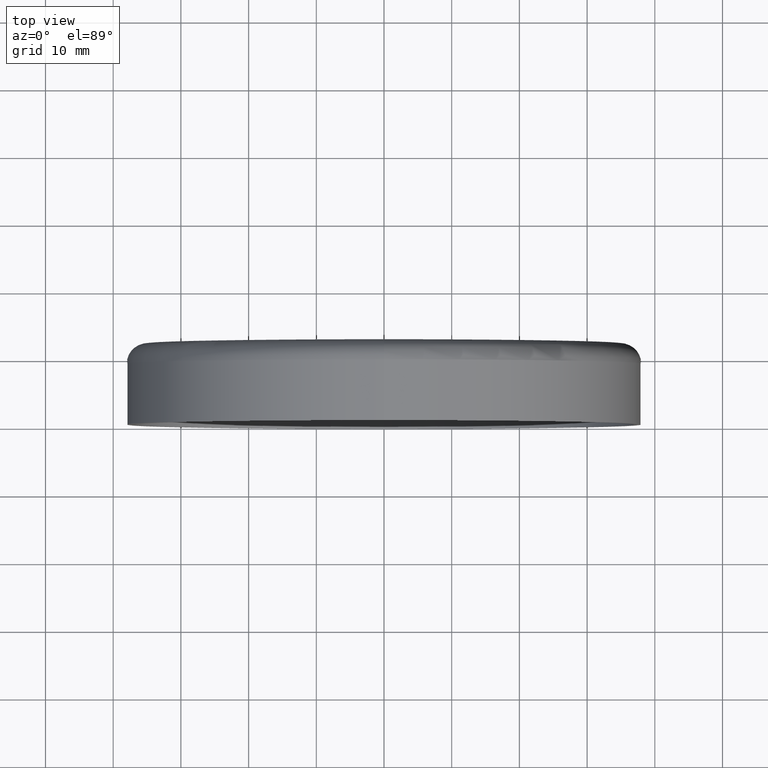
[diagram: clean part render]
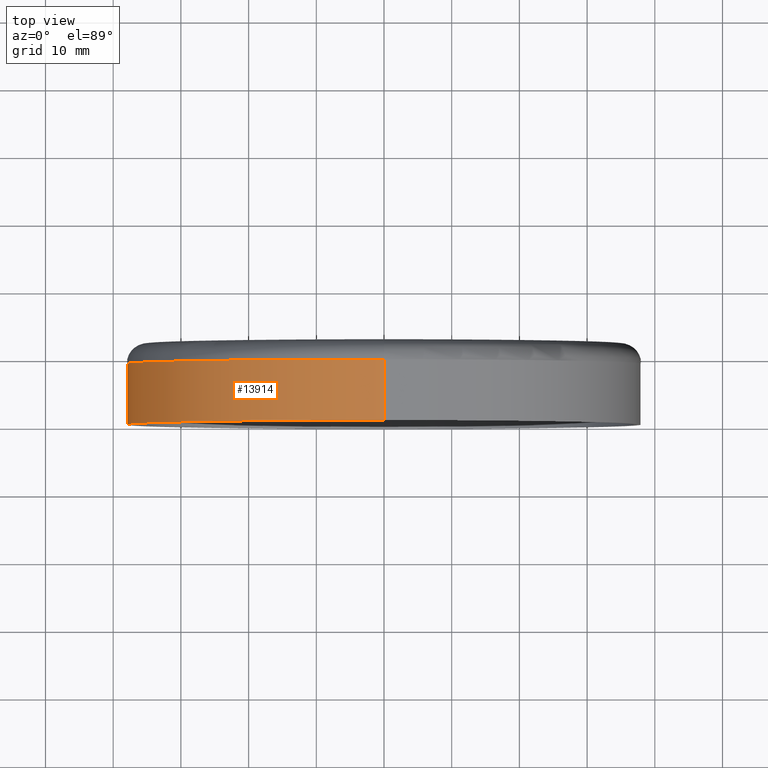
[diagram: same view with one face highlighted and labeled with its STEP entity id]
A machine part, top view. The second image highlights one B-rep face of the part: STEP entity #13914.
In plain terms, the highlighted cylindrical surface (partial cylindrical patch) has radius 38 mm, axis along (-0, -1, -0).
Its self-contained STEP definition (entity closure, byte-faithful):
#452 = LINE ( 'NONE', #2409, #3745 ) ;
#1458 = CARTESIAN_POINT ( 'NONE',  ( 0.000000000000000000, 9.000000000000001776, 0.000000000000000000 ) ) ;
#1858 = EDGE_CURVE ( 'NONE', #9881, #5434, #452, .T. ) ;
#1904 = VERTEX_POINT ( 'NONE', #8074 ) ;
#2387 = CIRCLE ( 'NONE', #4177, 38.00000000000000711 ) ;
#2409 = CARTESIAN_POINT ( 'NONE',  ( 0.000000000000000000, 0.000000000000000000, -38.00000000000000711 ) ) ;
#3314 = CARTESIAN_POINT ( 'NONE',  ( 0.000000000000000000, 0.000000000000000000, 0.000000000000000000 ) ) ;
#3361 = EDGE_CURVE ( 'NONE', #9947, #5434, #10081, .T. ) ;
#3636 = DIRECTION ( 'NONE',  ( 0.000000000000000000, 0.000000000000000000, -1.000000000000000000 ) ) ;
#3745 = VECTOR ( 'NONE', #5551, 1000.000000000000000 ) ;
#3780 = LINE ( 'NONE', #8621, #6190 ) ;
#4177 = AXIS2_PLACEMENT_3D ( 'NONE', #1458, #11613, #3636 ) ;
#4802 = EDGE_CURVE ( 'NONE', #1904, #9881, #2387, .T. ) ;
#5387 = CARTESIAN_POINT ( 'NONE',  ( 0.000000000000000000, 0.000000000000000000, -38.00000000000000711 ) ) ;
#5434 = VERTEX_POINT ( 'NONE', #5387 ) ;
#5444 = DIRECTION ( 'NONE',  ( 0.000000000000000000, 0.000000000000000000, -1.000000000000000000 ) ) ;
#5551 = DIRECTION ( 'NONE',  ( -0.000000000000000000, -1.000000000000000000, -0.000000000000000000 ) ) ;
#5699 = EDGE_LOOP ( 'NONE', ( #6229, #7160, #7126, #11113 ) ) ;
#5992 = DIRECTION ( 'NONE',  ( 0.000000000000000000, 0.000000000000000000, -1.000000000000000000 ) ) ;
#6190 = VECTOR ( 'NONE', #12026, 1000.000000000000000 ) ;
#6229 = ORIENTED_EDGE ( 'NONE', *, *, #7069, .F. ) ;
#6605 = DIRECTION ( 'NONE',  ( -0.000000000000000000, -1.000000000000000000, -0.000000000000000000 ) ) ;
#6769 = CYLINDRICAL_SURFACE ( 'NONE', #9521, 38.00000000000000711 ) ;
#7069 = EDGE_CURVE ( 'NONE', #1904, #9947, #3780, .T. ) ;
#7126 = ORIENTED_EDGE ( 'NONE', *, *, #1858, .T. ) ;
#7160 = ORIENTED_EDGE ( 'NONE', *, *, #4802, .T. ) ;
#8074 = CARTESIAN_POINT ( 'NONE',  ( 4.653657836759942730E-15, 9.000000000000001776, 38.00000000000000711 ) ) ;
#8621 = CARTESIAN_POINT ( 'NONE',  ( 4.653657836759942730E-15, 0.000000000000000000, 38.00000000000000711 ) ) ;
#9162 = CARTESIAN_POINT ( 'NONE',  ( 0.000000000000000000, 9.000000000000001776, -38.00000000000000711 ) ) ;
#9404 = AXIS2_PLACEMENT_3D ( 'NONE', #13650, #12641, #5992 ) ;
#9521 = AXIS2_PLACEMENT_3D ( 'NONE', #3314, #6605, #5444 ) ;
#9881 = VERTEX_POINT ( 'NONE', #9162 ) ;
#9922 = FACE_OUTER_BOUND ( 'NONE', #5699, .T. ) ;
#9947 = VERTEX_POINT ( 'NONE', #13770 ) ;
#10081 = CIRCLE ( 'NONE', #9404, 38.00000000000000711 ) ;
#11113 = ORIENTED_EDGE ( 'NONE', *, *, #3361, .F. ) ;
#11613 = DIRECTION ( 'NONE',  ( -0.000000000000000000, -1.000000000000000000, -0.000000000000000000 ) ) ;
#12026 = DIRECTION ( 'NONE',  ( -0.000000000000000000, -1.000000000000000000, -0.000000000000000000 ) ) ;
#12641 = DIRECTION ( 'NONE',  ( -0.000000000000000000, -1.000000000000000000, -0.000000000000000000 ) ) ;
#13650 = CARTESIAN_POINT ( 'NONE',  ( 0.000000000000000000, 0.000000000000000000, 0.000000000000000000 ) ) ;
#13770 = CARTESIAN_POINT ( 'NONE',  ( 4.653657836759942730E-15, 0.000000000000000000, 38.00000000000000711 ) ) ;
#13914 = ADVANCED_FACE ( 'NONE', ( #9922 ), #6769, .T. ) ;